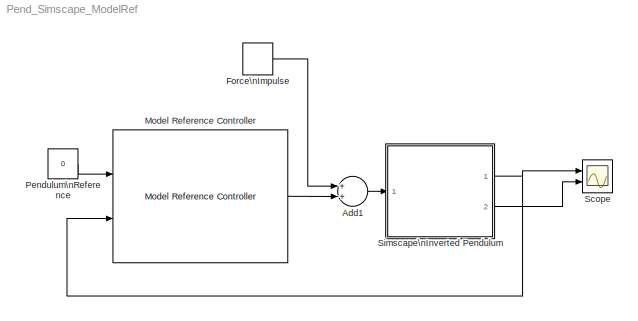
MODEL Pend_Simscape_ModelRef
KIND model
BLOCK [Sum] Add1
  InputSameDT = off
  OutDataTypeStr = Inherit: Inherit via internal rule
  Ports = [2, 1]
  SID = 84
  SaturateOnIntegerOverflow = off
BLOCK [DiscretePulseGenerator] Force\nImpulse
  Amplitude = 1000
  Period = 10
  Ports = [0, 1]
  PulseType = Time based
  PulseWidth = 0.01
  SID = 85
BLOCK [Reference] Model Reference Controller  REF=neural/Control Systems/Model Reference Controller
  B1 = [2.6465650826008491;2.2113546184098549;1.7467318464416295;1.3331619694539212;-0.91877084188573233;0.43867471550320036;0.031360519318436392;-0.47947825661959798;-0.89119199934784354;1.3306897407991731;-1.7612141984776728;2.1869265389800976;2.640008988275556]
  B1_c = [-174.1147644594916;214.82647575952709;-370.63131606569362;-316.70317438729955;7.8327434335715624;562.45834894310576;126.9579383150221;-199.41499517010345;1103.3059690925231;-895.6539827363539;-2.5537213466077797;51.882238360246738;228.90255647373118]
  B2 = 0.2005242910152556
  B2_c = 111.77168856852661
  IW = [0.00054558389965473296 -0.002327619766314445;-0.0013959710490232633 -0.00037415994652563618;-0.0019753256181632706 -0.00055943565102427404;0.0017123011160052363 -0.0013165662437421598;-0.0010551354932617017 -0.00031853346637677804;0.00041724144188397147 -0.0017945658692834258;0.0024122756083126344 0.00059830188249465144;-0.0013335806571518349 -0.0020754414718030358;-0.0013523455623173379 0.000322...<+198ch>
  IW_r = [-60.662787244262098 103.76776756542934;-118.21637545134604 -100.73522685003448;-516.51645601193388 9.8538291606889565;-419.84215052220355 291.71592001750855;367.33022025161034 -616.66349078924168;-125.1136718041559 -363.16077836889036;178.24976622285331 53.137725635936867;-192.02774504106037 200.86413259302543;224.17312159860609 -38.431172193701734;30.915824456241101 -245.36926176638502;7.7285193...<+104ch>
  IW_u = [-196.37005312148875;65.560967129286695;90.949127595054136;320.47822618279235;379.68397290288817;-116.66290448085188;-277.65313115119767;-228.61918647914391;461.71980723956938;192.76618727027494;-0.34774384422830534;203.79525424037402;184.5788962634048]
  IW_y = [-354.30726621653758 -222.78851626201967;270.6109058284361 176.02435305369136;295.64405130838753 185.30433822062878;-100.51519808568435 -191.45209225870229;1027.7890549343176 21.163807303285822;316.66509283744176 296.01875671727203;-53.315918237194452 52.39565804336064;110.45056574187008 -4.9821466123253018;-521.50546479546574 -219.11661452020843;-63.928653507873598 -86.40423206434896;6.1650421667...<+105ch>
  LW1_2 = [-0.32219034331792368 -0.22637351365469563;-0.46782010920362527 -0.54500677845607803;-0.49602321885502593 0.2414780724338601;-0.33979025547935199 0.37957520083200541;0.26645312284844791 0.72927600788265046;-0.094906884741967013 -0.61397059193936254;0.32006287947129464 -0.081785924796910242;-0.32558988938697425 0.11040210597262791;-0.68125904982340502 0.25935939539796776;0.069045271256544735 0.4693...<+135ch>
  LW2_1 = [-0.87719711541830603 -0.0074222287202303505 0.28463046917059698 -0.5574685397457908 0.67411289106376127 0.94215046288502702 0.69274577538634685 0.011998911781096577 -0.44224877770953874 0.49323444365640268 -0.5261392317742597 0.91469056323824649 0.24052007215554161]
  LW_c = [87.406725117190845 -30.321409696353975 77.054807734255661 170.53861307488609 -131.08995482114267 190.61811405840507 86.260046511664839 -118.21952130937024 275.51372169552366 346.73205531828268 426.29060141132851 -180.90083122774672 599.08379324632892]
  Limit_output = 0
  Ni = 2
  Nic = 1
  Nj = 2
  Njc = 2
  Normalize = 0
  Nrc = 2
  Ports = [2, 1]
  Ref_file = Pend_Simscape_PID
  S1 = 13
  S1c = 13
  SID = 143
  SourceBlock = neural/Control Systems/Model Reference Controller
  SourceType = NN Model Reference Control
  Ts = 0.2
  Use_Inc_training = 0
  Use_Testing = 1
  Use_previous_weights = 1
  Use_validation = 1
  epochs = 200
  epochs_c = 200
  max_i = 1000
  max_i_int = 2
  max_output = Inf
  max_r = 1000
  max_r_int = 2
  maxp = 973.93654956731621
  maxt = 973.93654956731621
  min_i = -1000
  min_i_int = 0.01
  min_output = -Inf
  min_r = -1000
  min_r_int = 0.01
  minp = -997.39886259880768
  mint = -3.1082765191449333
  retraining_c = 2
  sam_training = 500
  sam_training_c = 500
  sim_file = Pend_Model_Simscape_Plant_Out1
  trainfun = trainlm
BLOCK [Constant] Pendulum\nReference
  SID = 82
  Value = 0
BLOCK [Scope] Scope
  DataFormat = StructureWithTime
  Floating = off
  NumInputPorts = 2
  Ports = [2]
  SID = 74
  SampleTime = 0
  ShowLegends = off
  YMax = 5~5
  YMin = -5~-5
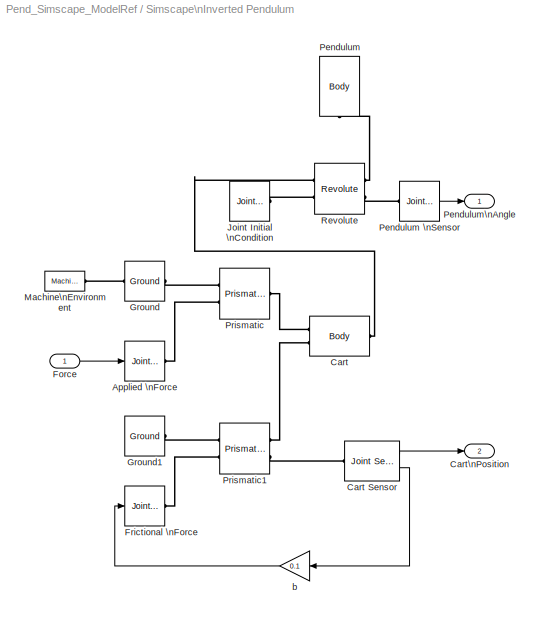
BLOCK [SubSystem] Simscape\nInverted Pendulum
  Ports = [1, 2]
  RequestExecContextInheritance = off
  SID = 125
BLOCK [Reference] Simscape\nInverted Pendulum/Applied \nForce  REF=mblibv1/Sensors & \nActuators/Joint Actuator
  AccelerationUnits = m/s^2
  ActiveIO = on
  ActuationStyle = Force
  AngleUnits = deg
  ArcAccelerationUnits = deg/s^2
  ArcVelocityUnits = deg/s
  ClassName = JointActuator
  CoordPositionUnits = m
  DialogClass = MechanicalActuatorBlock
  ForceUnits = N
  PhysicalDomain = Mechanical
  PortType = blob
  Ports = [1, 0, 0, 0, 0, 0, 1]
  Primitive = P1
  ReferenceFrame = Absolute (World)
  SID = 127
  SourceBlock = mblibv1/Sensors & \nActuators/Joint Actuator
  SourceType = Joint Actuator
  TorqueUnits = N-m
  UpdateFromCAD = off
  VelocityUnits = m/s
  Width = 1
BLOCK [Reference] Simscape\nInverted Pendulum/Cart  REF=mblibv1/Bodies/Body
  AttachedToCS = CG
  BodyColor = [1 0 0]
  BodyColorSelMode = MACHINE_DEFAULT
  CG = Left$CG$[0 0 0]$WORLD$WORLD$m$[0 0 0]$Euler X-Y-Z$deg$WORLD$false$none
  CGPos = [0 0 0]
  CGRot = [0 0 0]
  CS0Pos = []
  CS0Rot = []
  CS10Pos = []
  CS10Rot = []
  CS11Pos = []
  CS11Rot = []
  CS12Pos = []
  CS12Rot = []
  CS13Pos = []
  CS13Rot = []
  CS14Pos = []
  CS14Rot = []
  CS15Pos = []
  CS15Rot = []
  CS16Pos = []
  CS16Rot = []
  CS17Pos = []
  CS17Rot = []
  CS18Pos = []
  CS18Rot = []
  CS19Pos = []
  CS19Rot = []
  CS1Pos = [-1 0 0]
  CS1Rot = [0 0 0]
  CS20Pos = []
  CS20Rot = []
  CS2Pos = [0 0 0]
  CS2Rot = [0 0 0]
  CS3Pos = [0 0.5 0]
  CS3Rot = [0 0 0]
  CS4Pos = [-1 0.5 0]
  CS4Rot = [0 0 0]
  CS5Pos = [-1 -0.5 0]
  CS5Rot = [0 0 0]
  CS6Pos = [1 -0.5 0]
  CS6Rot = [0 0 0]
  CS7Pos = [1 0.5 0]
  CS7Rot = [0 0 0]
  CS8Pos = []
  CS8Rot = []
  CS9Pos = []
  CS9Rot = []
  ClassName = Body
  Density = 1
  DensityUnits = kg/m^3
  DensityUse = false
  DialogClass = MechanicalBodyBlock
  GraphicsMode = MACHINE_DEFAULT
  Inertia = eye(3)
  InertiaUnits = kg*m^2
  LConnTagsString = CS1|CS2
  Mass = 0.5
  MassUnits = kg
  Ports = [0, 0, 0, 0, 0, 2, 1]
  RConnTagsString = CS3
  SID = 128
  Shape = Cylinder
  ShapeDims = [1 1]
  ShapeUnits = m
  ShapeUse = false
  SourceBlock = mblibv1/Bodies/Body
  SourceType = Body
  UpdateFromCAD = off
  WorkingFrames = Left$CS1$[-1 0 0]$CG$CG$m$[0 0 0]$Euler X-Y-Z$deg$WORLD$true$none#Left$CS2$[0 0 0]$CG$CG$m$[0 0 0]$Euler X-Y-Z$deg$WORLD$true$none#Right$CS3$[0 0.5 0]$CG$CG$m$[0 0 0]$Euler X-Y-Z$deg$WORLD$true$none#Right$CS4$[-1 0.5 0]$CG$CG$m$[0 0 0]$Euler X-Y-Z$deg$WORLD$false$none#Right$CS5$[-1 -0.5 0]$CG$CG$m$[0 0 0]$Euler X-Y-Z$deg$WORLD$false$none#Right$CS6$[1 -0.5 0]$CG$CG$m$[0 0 0]$Euler X-Y-Z$deg$WORLD$f...<+78ch>
BLOCK [Reference] Simscape\nInverted Pendulum/Cart Sensor  REF=mblibv1/Sensors & \nActuators/Joint Sensor
  Acceleration = off
  AccelerationUnits = m/s^2
  ActiveIO = on
  Angle = on
  AngleUnits = deg
  ArcAcceleration = off
  ArcAccelerationUnits = deg/s^2
  ArcVelocity = off
  ArcVelocityUnits = deg/s
  ClassName = JointSensor
  CoordPosition = on
  CoordPositionUnits = m
  DialogClass = MechanicalSensorBlock
  Force = off
  ForceUnits = N
  Muxed = off
  OutputVector = [1]
  PhysicalDomain = Mechanical
  PortType = blob
  Ports = [0, 2, 0, 0, 0, 1]
  Pose = off
  Primitive = P1
  Quaternion = on
  QuaternionDDT = off
  QuaternionDT = off
  QuaternionUnits = off
  ReactionForce = off
  ReactionForceUnits = N
  ReactionMoment = off
  ReactionMomentUnits = N*m
  ReactionReferenceFrame = Absolute (World)
  ReactionSensedSide = Base
  ReferenceFrame = Absolute (World)
  SID = 129
  SourceBlock = mblibv1/Sensors & \nActuators/Joint Sensor
  SourceType = Joint Sensor
  Torque = off
  TorqueUnits = N*m
  UpdateFromCAD = off
  Velocity = on
  VelocityUnits = m/s
  Width = 2
BLOCK [Outport] Simscape\nInverted Pendulum/Cart\nPosition
  IconDisplay = Port number
  Port = 2
  SID = 142
BLOCK [Inport] Simscape\nInverted Pendulum/Force
  IconDisplay = Port number
  SID = 126
BLOCK [Reference] Simscape\nInverted Pendulum/Frictional \nForce  REF=mblibv1/Sensors & \nActuators/Joint Actuator
  AccelerationUnits = m/s^2
  ActiveIO = on
  ActuationStyle = Force
  AngleUnits = deg
  ArcAccelerationUnits = deg/s^2
  ArcVelocityUnits = deg/s
  ClassName = JointActuator
  CoordPositionUnits = m
  DialogClass = MechanicalActuatorBlock
  ForceUnits = N
  PhysicalDomain = Mechanical
  PortType = blob
  Ports = [1, 0, 0, 0, 0, 0, 1]
  Primitive = P1
  ReferenceFrame = Absolute (World)
  SID = 130
  SourceBlock = mblibv1/Sensors & \nActuators/Joint Actuator
  SourceType = Joint Actuator
  TorqueUnits = N*m
  UpdateFromCAD = off
  VelocityUnits = m/s
  Width = 1
BLOCK [Reference] Simscape\nInverted Pendulum/Ground  REF=mblibv1/Bodies/Ground
  ClassName = Ground
  CoordPosition = [0 0 0]
  CoordPositionUnits = m
  DialogClass = GroundBlock
  LeftPortType = env
  MachineId = [1 0]
  ParameterChecksum = [1254869985, 4206444564, 3095028029, 2774129723]
  PhysicalDomain = Mechanical
  Ports = [0, 0, 0, 0, 0, 1, 1]
  RightPortType = workingframe
  SID = 131
  ShowEnvPort = on
  SourceBlock = mblibv1/Bodies/Ground
  SourceType = Ground
  StateVectorMgrId = 0
  TopologyChecksum = [1188294885, 2767505572, 132818592, 2473842466]
  UpdateFromCAD = off
  UserData = DataTag0
  UserDataPersistent = on
BLOCK [Reference] Simscape\nInverted Pendulum/Ground1  REF=mblibv1/Bodies/Ground
  ClassName = Ground
  CoordPosition = [0 0 0]
  CoordPositionUnits = m
  DialogClass = GroundBlock
  LeftPortType = env
  MachineId = [0 0]
  ParameterChecksum = [0 0 0 0]
  PhysicalDomain = Mechanical
  Ports = [0, 0, 0, 0, 0, 0, 1]
  RightPortType = workingframe
  SID = 132
  ShowEnvPort = off
  SourceBlock = mblibv1/Bodies/Ground
  SourceType = Ground
  StateVectorMgrId = -1
  TopologyChecksum = [0 0 0 0]
  UpdateFromCAD = off
  UserData = DataTag1
  UserDataPersistent = on
BLOCK [Reference] Simscape\nInverted Pendulum/Joint Initial \nCondition  REF=mblibv1/Sensors & \nActuators/Joint Initial Condition
  ClassName = InitialCondition
  DialogClass = InitialConditionBlock
  InitialConditions = P1$false$0$m$deg$0$m/s$deg/s#P2$false$0$m$deg$0$m/s$deg/s#P3$false$0$m$deg$0$m/s$deg/s#R1$true$0$m$deg$0$m/s$deg/s#R2$false$0$m$deg$0$m/s$deg/s#R3$false$0$m$deg$0$m/s$deg/s#S$false$0$m$deg$0$m/s$deg/s
  LeftPortType = blob
  P1PIC = 0
  P1VIC = 0
  P2PIC = 0
  P2VIC = 0
  P3PIC = 0
  P3VIC = 0
  PhysicalDomain = mechanical
  Ports = [0, 0, 0, 0, 0, 0, 1]
  R1PIC = 0
  R1VIC = 0
  R2PIC = 0
  R2VIC = 0
  R3PIC = 0
  R3VIC = 0
  RightPortType = blob
  SID = 133
  SPIC = 0
  SVIC = 0
  SourceBlock = mblibv1/Sensors & \nActuators/Joint Initial Condition
  SourceType = Joint Initial Condition
  UpdateFromCAD = off
BLOCK [Reference] Simscape\nInverted Pendulum/Machine\nEnvironment  REF=mblibv1/Bodies/Machine\nEnvironment
  AnalysisType = Forward dynamics
  AngularAssemblyTolerance = 1e-3
  AngularAssemblyToleranceUnits = rad
  BodyColorSelMode = Use model default
  BodyVisualizationType = Use model default body geometries
  ClassName = Environment
  ConstraintAbsTolerance = 1e-4
  ConstraintRelTolerance = 1e-4
  ConstraintSolverType = Stabilizing
  DefaultBodyColor = [1 0 0]
  DialogTemplateClass = MECH.MachineEnvironment
  Dimensionality = Auto-detect
  Gravity = [0 -9.81 0]
  GravityAsSignal = off
  GravityUnits = m/s^2
  LinearAssemblyTolerance = 1e-3
  LinearAssemblyToleranceUnits = m
  PerturbationSize = 1e-5
  PhysicalDomain = Mechanical
  PortType = env
  Ports = [0, 0, 0, 0, 0, 0, 1]
  RedundancyAnalysisTolerance = 1e-14
  RedundancyAnalysisToleranceType = Automatically select tolerance
  SID = 134
  SourceBlock = mblibv1/Bodies/Machine\nEnvironment
  SourceType = Machine Environment
  StatePerturbationType = Fixed
  SyncWhenCopied = off
  UseRobustSingularityHandling = off
  VisualizeMachine = on
BLOCK [Reference] Simscape\nInverted Pendulum/Pendulum  REF=mblibv1/Bodies/Body
  AttachedToCS = CG
  BodyColor = [0.078431 0.16863 0.54902]
  BodyColorSelMode = COLORPALETTE
  CG = Left$CG$[0 0.3 0]$CS1$CS1$m$[0 0 0]$Euler X-Y-Z$deg$WORLD$false$none
  CGPos = [0 0.3 0]
  CGRot = [0 0 0]
  CS0Pos = []
  CS0Rot = []
  CS10Pos = []
  CS10Rot = []
  CS11Pos = []
  CS11Rot = []
  CS12Pos = []
  CS12Rot = []
  CS13Pos = []
  CS13Rot = []
  CS14Pos = []
  CS14Rot = []
  CS15Pos = []
  CS15Rot = []
  CS16Pos = []
  CS16Rot = []
  CS17Pos = []
  CS17Rot = []
  CS18Pos = []
  CS18Rot = []
  CS19Pos = []
  CS19Rot = []
  CS1Pos = [0 0 0]
  CS1Rot = [0 0 0]
  CS20Pos = []
  CS20Rot = []
  CS2Pos = [0.1 0 0]
  CS2Rot = [0 0 0]
  CS3Pos = [-0.1 0 0]
  CS3Rot = [0 0 0]
  CS4Pos = [-0.1 0.6 0]
  CS4Rot = [0 0 0]
  CS5Pos = [0.1 0.6 0]
  CS5Rot = [0 0 0]
  CS6Pos = []
  CS6Rot = []
  CS7Pos = []
  CS7Rot = []
  CS8Pos = []
  CS8Rot = []
  CS9Pos = []
  CS9Rot = []
  ClassName = Body
  Density = 1
  DensityUnits = kg/m^3
  DensityUse = false
  DialogClass = MechanicalBodyBlock
  GraphicsMode = MACHINE_DEFAULT
  Inertia = 0.006*eye(3)
  InertiaUnits = kg*m^2
  LConnTagsString = CS1
  Mass = 0.2
  MassUnits = kg
  Ports = [0, 0, 0, 0, 0, 1]
  SID = 135
  Shape = Cylinder
  ShapeDims = [1 1]
  ShapeUnits = m
  ShapeUse = false
  SourceBlock = mblibv1/Bodies/Body
  SourceType = Body
  UpdateFromCAD = off
  WorkingFrames = Left$CS1$[0 0 0]$Adjoining$Adjoining$m$[0 0 0]$Euler X-Y-Z$deg$WORLD$true$none#Right$CS2$[0.1 0 0]$CS1$CS1$m$[0 0 0]$Euler X-Y-Z$deg$WORLD$false$none#Right$CS3$[-0.1 0 0]$CS1$CS1$m$[0 0 0]$Euler X-Y-Z$deg$WORLD$false$none#Right$CS4$[-0.1 0.6 0]$CS1$CS1$m$[0 0 0]$Euler X-Y-Z$deg$WORLD$false$none#Right$CS5$[0.1 0.6 0]$CS1$CS1$m$[0 0 0]$Euler X-Y-Z$deg$WORLD$false$none
BLOCK [Reference] Simscape\nInverted Pendulum/Pendulum \nSensor  REF=mblibv1/Sensors & \nActuators/Joint Sensor
  Acceleration = off
  AccelerationUnits = m/s^2
  ActiveIO = on
  Angle = on
  AngleUnits = rad
  ArcAcceleration = off
  ArcAccelerationUnits = deg/s^2
  ArcVelocity = off
  ArcVelocityUnits = deg/s
  ClassName = JointSensor
  CoordPosition = on
  CoordPositionUnits = m
  DialogClass = MechanicalSensorBlock
  Force = off
  ForceUnits = N
  Muxed = on
  OutputVector = [1]
  PhysicalDomain = Mechanical
  PortType = blob
  Ports = [0, 1, 0, 0, 0, 1]
  Pose = off
  Primitive = R1
  Quaternion = on
  QuaternionDDT = off
  QuaternionDT = off
  QuaternionUnits = off
  ReactionForce = off
  ReactionForceUnits = N
  ReactionMoment = off
  ReactionMomentUnits = N*m
  ReactionReferenceFrame = Absolute (World)
  ReactionSensedSide = Base
  ReferenceFrame = Absolute (World)
  SID = 136
  SourceBlock = mblibv1/Sensors & \nActuators/Joint Sensor
  SourceType = Joint Sensor
  Torque = off
  TorqueUnits = N*m
  UpdateFromCAD = off
  Velocity = off
  VelocityUnits = m/s
  Width = 1
BLOCK [Outport] Simscape\nInverted Pendulum/Pendulum\nAngle
  IconDisplay = Port number
  SID = 141
BLOCK [Reference] Simscape\nInverted Pendulum/Prismatic  REF=mblibv1/Joints/Prismatic
  ClassName = Joint
  CutJoint = off
  DialogClass = JointBlock
  LConnTagsString = __newl0|SA1
  MarkAsCut = off
  NumSAPorts = 1
  P1Axis = [1 0 0]
  Ports = [0, 0, 0, 0, 0, 2, 1]
  PrimitiveProps = P1$World$[1 0 0]$prismatic
  Primitives = prismatic
  RConnTagsString = __newr0
  SID = 137
  SourceBlock = mblibv1/Joints/Prismatic
  SourceType = Prismatic
  UpdateFromCAD = off
BLOCK [Reference] Simscape\nInverted Pendulum/Prismatic1  REF=mblibv1/Joints/Prismatic
  ClassName = Joint
  CutJoint = off
  DialogClass = JointBlock
  LConnTagsString = __newl0|SA1
  MarkAsCut = off
  NumSAPorts = 2
  P1Axis = [1 0 0]
  Ports = [0, 0, 0, 0, 0, 2, 2]
  PrimitiveProps = P1$World$[1 0 0]$prismatic
  Primitives = prismatic
  RConnTagsString = __newr0|SA1
  SID = 138
  SourceBlock = mblibv1/Joints/Prismatic
  SourceType = Prismatic
  UpdateFromCAD = off
BLOCK [Reference] Simscape\nInverted Pendulum/Revolute  REF=mblibv1/Joints/Revolute
  ClassName = Joint
  CutJoint = off
  DialogClass = JointBlock
  LConnTagsString = __newl0|SA1
  MarkAsCut = off
  NumSAPorts = 2
  Ports = [0, 0, 0, 0, 0, 2, 2]
  PrimitiveProps = R1$World$[0 0 1]$revolute
  Primitives = prismatic
  R1Axis = [0 0 1]
  RConnTagsString = __newr0|SA1
  SID = 139
  SourceBlock = mblibv1/Joints/Revolute
  SourceType = Revolute
  UpdateFromCAD = off
BLOCK [Gain] Simscape\nInverted Pendulum/b
  Gain = 0.1
  OutDataTypeStr = Inherit: Inherit via internal rule
  ParamDataTypeStr = Inherit: Inherit via internal rule
  SID = 140
  SaturateOnIntegerOverflow = off
LINE Add1:1 -> Simscape\nInverted Pendulum:1
LINE Force\nImpulse:1 -> Add1:1
LINE Model Reference Controller:1 -> Add1:2
LINE Pendulum\nReference:1 -> Model Reference Controller:1
LINE Simscape\nInverted Pendulum/Cart Sensor:1 -> Simscape\nInverted Pendulum/Cart\nPosition:1
LINE Simscape\nInverted Pendulum/Cart Sensor:2 -> Simscape\nInverted Pendulum/b:1
LINE Simscape\nInverted Pendulum/Force:1 -> Simscape\nInverted Pendulum/Applied \nForce:1
LINE Simscape\nInverted Pendulum/Pendulum \nSensor:1 -> Simscape\nInverted Pendulum/Pendulum\nAngle:1
LINE Simscape\nInverted Pendulum/b:1 -> Simscape\nInverted Pendulum/Frictional \nForce:1
NET Simscape\nInverted Pendulum:1 -> Model Reference Controller:2, Scope:1
LINE Simscape\nInverted Pendulum:2 -> Scope:2
PLINE Simscape\nInverted Pendulum/Applied \nForce:RConn1 -- Simscape\nInverted Pendulum/Prismatic:LConn2
PLINE Simscape\nInverted Pendulum/Cart Sensor:LConn1 -- Simscape\nInverted Pendulum/Prismatic1:RConn2
PLINE Simscape\nInverted Pendulum/Cart:LConn1 -- Simscape\nInverted Pendulum/Prismatic:RConn1
PLINE Simscape\nInverted Pendulum/Cart:LConn2 -- Simscape\nInverted Pendulum/Prismatic1:RConn1
PLINE Simscape\nInverted Pendulum/Cart:RConn1 -- Simscape\nInverted Pendulum/Revolute:LConn1
PLINE Simscape\nInverted Pendulum/Frictional \nForce:RConn1 -- Simscape\nInverted Pendulum/Prismatic1:LConn2
PLINE Simscape\nInverted Pendulum/Ground1:RConn1 -- Simscape\nInverted Pendulum/Prismatic1:LConn1
PLINE Simscape\nInverted Pendulum/Ground:LConn1 -- Simscape\nInverted Pendulum/Machine\nEnvironment:RConn1
PLINE Simscape\nInverted Pendulum/Ground:RConn1 -- Simscape\nInverted Pendulum/Prismatic:LConn1
PLINE Simscape\nInverted Pendulum/Joint Initial \nCondition:RConn1 -- Simscape\nInverted Pendulum/Revolute:LConn2
PLINE Simscape\nInverted Pendulum/Pendulum \nSensor:LConn1 -- Simscape\nInverted Pendulum/Revolute:RConn2
PLINE Simscape\nInverted Pendulum/Pendulum:LConn1 -- Simscape\nInverted Pendulum/Revolute:RConn1
note: NET lines group one-source signal fan-out (src -> all destinations, sorted); 1:1 wires keep LINE
